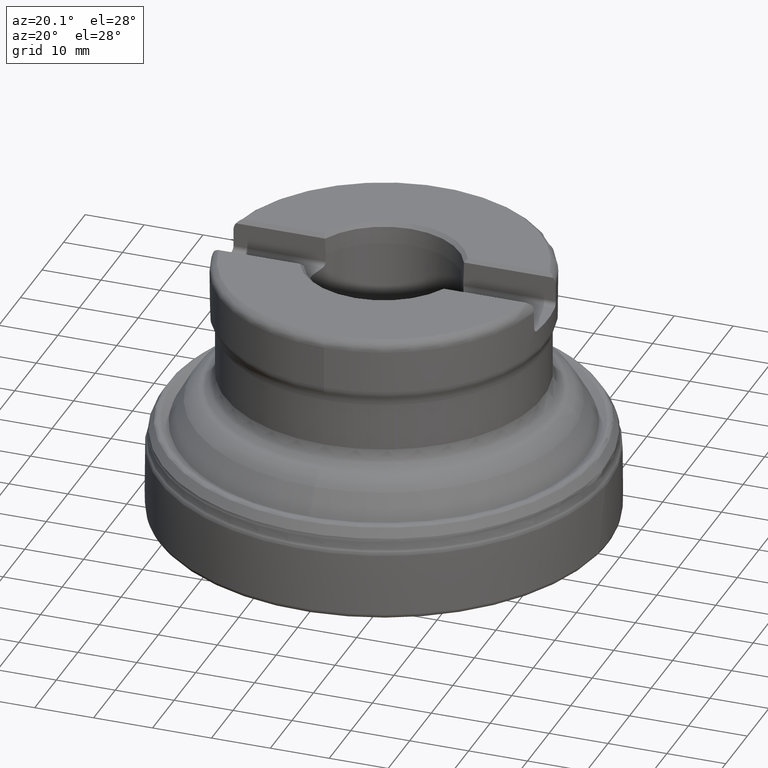
[diagram: clean part render]
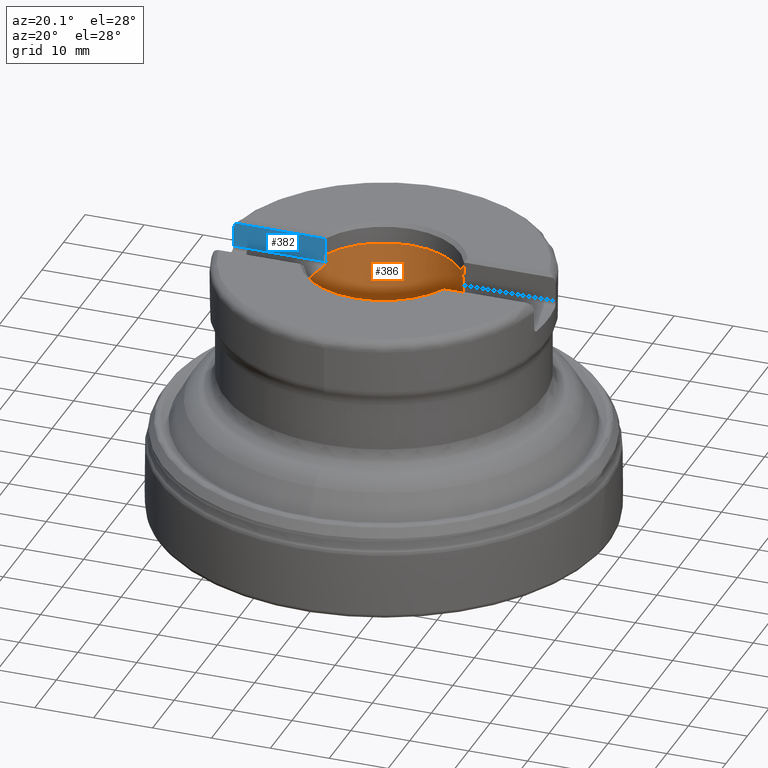
[diagram: same view with the hole feature highlighted: cylindrical wall and planar end face, labeled with their STEP entity ids]
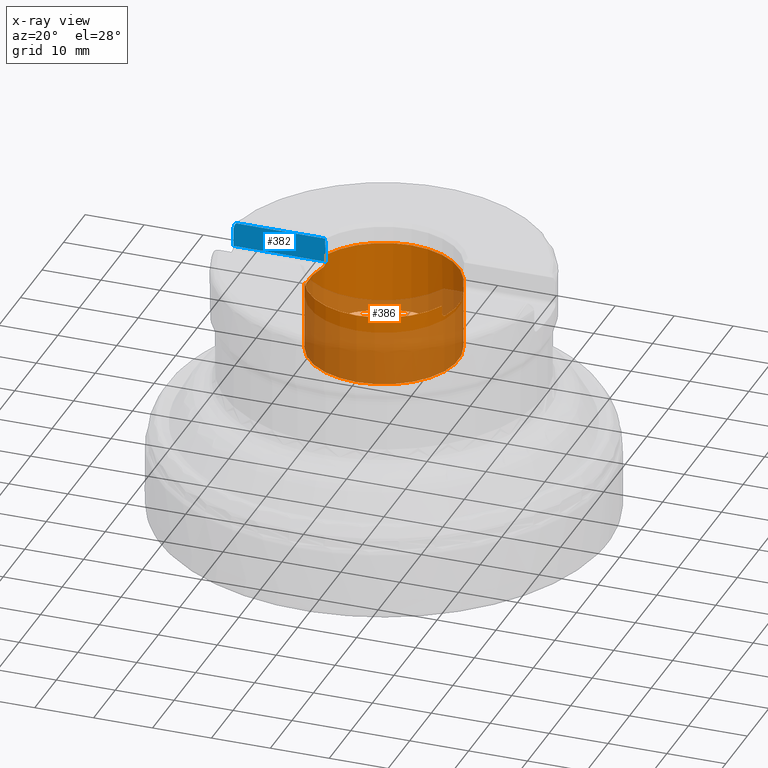
[diagram: x-ray of the same camera — body ghosted, the hole faces saturated]
A machine part, auxiliary view. The highlighted faces form one hole feature of diameter 25.4 mm: the cylindrical wall (entity #386, orange) and its adjacent planar end face (entity #382, blue) — they share a circular edge in the B-rep.
The next image is the same camera in x-ray (body ghosted, the hole faces saturated) — the bore reads through the body.
Wall:
#192=CYLINDRICAL_SURFACE('',#1260,12.7);
#212=LINE('',#2213,#239);
#214=LINE('',#2230,#241);
#216=LINE('',#2247,#243);
#218=LINE('',#2264,#245);
#239=VECTOR('',#1448,1.);
#241=VECTOR('',#1452,1.);
#243=VECTOR('',#1456,1.);
#245=VECTOR('',#1460,1.);
#275=FACE_BOUND('',#515,.T.);
#276=FACE_BOUND('',#516,.T.);
#386=ADVANCED_FACE('',(#275,#276),#192,.F.);
#515=EDGE_LOOP('',(#780));
#516=EDGE_LOOP('',(#781,#782,#783,#784,#785,#786,#787,#788,#789,#790,#791,
#792));
#636=CIRCLE('',#1242,12.7);
#637=CIRCLE('',#1248,12.7);
#640=CIRCLE('',#1257,12.7);
#641=CIRCLE('',#1258,12.7);
#642=CIRCLE('',#1259,12.7);
#780=ORIENTED_EDGE('',*,*,#1090,.F.);
#781=ORIENTED_EDGE('',*,*,#1089,.F.);
#782=ORIENTED_EDGE('',*,*,#1091,.F.);
#783=ORIENTED_EDGE('',*,*,#1085,.F.);
#784=ORIENTED_EDGE('',*,*,#1061,.T.);
#785=ORIENTED_EDGE('',*,*,#1059,.F.);
#786=ORIENTED_EDGE('',*,*,#1070,.T.);
#787=ORIENTED_EDGE('',*,*,#1081,.F.);
#788=ORIENTED_EDGE('',*,*,#1092,.F.);
#789=ORIENTED_EDGE('',*,*,#1077,.F.);
#790=ORIENTED_EDGE('',*,*,#1067,.T.);
#791=ORIENTED_EDGE('',*,*,#1071,.F.);
#792=ORIENTED_EDGE('',*,*,#1064,.T.);
#956=VERTEX_POINT('',#2106);
#957=VERTEX_POINT('',#2108);
#958=VERTEX_POINT('',#2127);
#959=VERTEX_POINT('',#2131);
#960=VERTEX_POINT('',#2148);
#961=VERTEX_POINT('',#2152);
#962=VERTEX_POINT('',#2169);
#963=VERTEX_POINT('',#2173);
#966=VERTEX_POINT('',#2205);
#971=VERTEX_POINT('',#2229);
#972=VERTEX_POINT('',#2239);
#977=VERTEX_POINT('',#2263);
#978=VERTEX_POINT('',#2267);
#1059=EDGE_CURVE('',#956,#957,#636,.T.);
#1061=EDGE_CURVE('',#958,#957,#1162,.T.);
#1064=EDGE_CURVE('',#960,#959,#1163,.T.);
#1067=EDGE_CURVE('',#962,#961,#1164,.T.);
#1070=EDGE_CURVE('',#956,#963,#1165,.T.);
#1071=EDGE_CURVE('',#960,#961,#637,.T.);
#1077=EDGE_CURVE('',#962,#966,#212,.T.);
#1081=EDGE_CURVE('',#971,#963,#214,.T.);
#1085=EDGE_CURVE('',#958,#972,#216,.T.);
#1089=EDGE_CURVE('',#977,#959,#218,.T.);
#1090=EDGE_CURVE('',#978,#978,#640,.T.);
#1091=EDGE_CURVE('',#972,#977,#641,.T.);
#1092=EDGE_CURVE('',#966,#971,#642,.T.);
#1162=B_SPLINE_CURVE_WITH_KNOTS('',3,(#2111,#2112,#2113,#2114,#2115,#2116,
#2117,#2118,#2119,#2120,#2121,#2122,#2123,#2124,#2125,#2126),
 .UNSPECIFIED.,.F.,.F.,(4,3,3,3,3,4),(0.,0.0919914640590944,0.30553597161609,
0.53426746635181,0.767237662896965,1.),.UNSPECIFIED.);
#1163=B_SPLINE_CURVE_WITH_KNOTS('',3,(#2132,#2133,#2134,#2135,#2136,#2137,
#2138,#2139,#2140,#2141,#2142,#2143,#2144,#2145,#2146,#2147),
 .UNSPECIFIED.,.F.,.F.,(4,3,3,3,3,4),(0.,0.187949566051452,0.405805927698822,
0.608459015387889,0.803993626920795,1.),.UNSPECIFIED.);
#1164=B_SPLINE_CURVE_WITH_KNOTS('',3,(#2153,#2154,#2155,#2156,#2157,#2158,
#2159,#2160,#2161,#2162,#2163,#2164,#2165,#2166,#2167,#2168),
 .UNSPECIFIED.,.F.,.F.,(4,3,3,3,3,4),(0.,0.118692613079593,0.33453699269261,
0.564581204634546,0.797853549801286,1.),.UNSPECIFIED.);
#1165=B_SPLINE_CURVE_WITH_KNOTS('',3,(#2174,#2175,#2176,#2177,#2178,#2179,
#2180,#2181,#2182,#2183,#2184,#2185,#2186,#2187,#2188,#2189),
 .UNSPECIFIED.,.F.,.F.,(4,3,3,3,3,4),(0.,0.188583691695649,0.406269930528108,
0.608764767553908,0.804146687201781,1.),.UNSPECIFIED.);
#1242=AXIS2_PLACEMENT_3D('',#2107,#1418,#1419);
#1248=AXIS2_PLACEMENT_3D('',#2191,#1437,#1438);
#1257=AXIS2_PLACEMENT_3D('',#2266,#1463,#1464);
#1258=AXIS2_PLACEMENT_3D('',#2268,#1465,#1466);
#1259=AXIS2_PLACEMENT_3D('',#2269,#1467,#1468);
#1260=AXIS2_PLACEMENT_3D('',#2270,#1469,#1470);
#1418=DIRECTION('',(0.,-1.17145536458252E-15,-1.));
#1419=DIRECTION('',(0.,-1.,1.09273919746571E-15));
#1437=DIRECTION('',(0.,-1.17145536458252E-15,-1.));
#1438=DIRECTION('',(0.,-1.,1.09273919746571E-15));
#1448=DIRECTION('',(0.,1.17145536458252E-15,1.));
#1452=DIRECTION('',(0.,-1.17145536458252E-15,-1.));
#1456=DIRECTION('',(0.,1.17145536458252E-15,1.));
#1460=DIRECTION('',(0.,-1.17145536458252E-15,-1.));
#1463=DIRECTION('',(0.,1.17145536458252E-15,1.));
#1464=DIRECTION('',(0.,-1.,1.09273919746571E-15));
#1465=DIRECTION('',(0.,-1.17145536458252E-15,-1.));
#1466=DIRECTION('',(0.,-1.,1.09273919746571E-15));
#1467=DIRECTION('',(0.,-1.17145536458252E-15,-1.));
#1468=DIRECTION('',(0.,-1.,1.09273919746571E-15));
#1469=DIRECTION('',(0.,1.17145536458252E-15,1.));
#1470=DIRECTION('',(0.,-1.,1.09273919746571E-15));
#2106=CARTESIAN_POINT('',(11.9976153880677,4.16500000000004,38.89));
#2107=CARTESIAN_POINT('',(0.,4.55578991286144E-14,38.89));
#2108=CARTESIAN_POINT('',(11.9976153880677,-4.16499999999995,38.89));
#2111=CARTESIAN_POINT('',(11.6892589585482,-4.96499999999995,39.69));
#2112=CARTESIAN_POINT('',(11.6892589585482,-4.96499999999995,39.6498060238737));
#2113=CARTESIAN_POINT('',(11.6905568194861,-4.96194760993451,39.6094795672361));
#2114=CARTESIAN_POINT('',(11.6931107662262,-4.95592177185671,39.5698220036655));
#2115=CARTESIAN_POINT('',(11.698958464125,-4.9421245848943,39.4790192286835));
#2116=CARTESIAN_POINT('',(11.711724380251,-4.91199201726467,39.3897399894335));
#2117=CARTESIAN_POINT('',(11.729516346995,-4.86913198276407,39.3102656838674));
#2118=CARTESIAN_POINT('',(11.7485630195713,-4.82324941927429,39.2251867772956));
#2119=CARTESIAN_POINT('',(11.773916121918,-4.76138290617577,39.1484896030576));
#2120=CARTESIAN_POINT('',(11.8022061367056,-4.69019512458788,39.0865349379549));
#2121=CARTESIAN_POINT('',(11.8310456314685,-4.61762465512358,39.0233769207823));
#2122=CARTESIAN_POINT('',(11.8637793603147,-4.53318108009497,38.9734606160419));
#2123=CARTESIAN_POINT('',(11.8969626110095,-4.44435379242484,38.9403591135365));
#2124=CARTESIAN_POINT('',(11.9301315013193,-4.35556494565559,38.9072719360387));
#2125=CARTESIAN_POINT('',(11.9646918126675,-4.25983899036061,38.89));
#2126=CARTESIAN_POINT('',(11.9976153880677,-4.16499999999995,38.89));
#2127=CARTESIAN_POINT('',(11.6892589585482,-4.96499999999995,39.69));
#2131=CARTESIAN_POINT('',(-11.6892589585482,-4.96499999999995,39.69));
#2132=CARTESIAN_POINT('',(-11.9976153880677,-4.16499999999995,38.89));
#2133=CARTESIAN_POINT('',(-11.9709296500294,-4.24187040127985,38.89));
#2134=CARTESIAN_POINT('',(-11.9432374526267,-4.31916929808128,38.9012554639037));
#2135=CARTESIAN_POINT('',(-11.9161252503018,-4.39271658761626,38.923093776447));
#2136=CARTESIAN_POINT('',(-11.8848042548693,-4.47768107305346,38.9483221839082));
#2137=CARTESIAN_POINT('',(-11.8535280004186,-4.55960218043711,38.988348905998));
#2138=CARTESIAN_POINT('',(-11.8250446269604,-4.63231255102615,39.0406780616263));
#2139=CARTESIAN_POINT('',(-11.7985253217435,-4.70000918509653,39.0893988654275));
#2140=CARTESIAN_POINT('',(-11.7738131527377,-4.76132932683089,39.1499720685128));
#2141=CARTESIAN_POINT('',(-11.7532950701827,-4.81145040431872,39.2187231442601));
#2142=CARTESIAN_POINT('',(-11.7335040571655,-4.85979541386512,39.2850379878333));
#2143=CARTESIAN_POINT('',(-11.7171731226468,-4.898842546446,39.360635842045));
#2144=CARTESIAN_POINT('',(-11.7061753454793,-4.92498312493471,39.4401487446211));
#2145=CARTESIAN_POINT('',(-11.695162667562,-4.95115912096419,39.5197693782281));
#2146=CARTESIAN_POINT('',(-11.6892589585482,-4.96499999999995,39.6054665324323));
#2147=CARTESIAN_POINT('',(-11.6892589585482,-4.96499999999995,39.69));
#2148=CARTESIAN_POINT('',(-11.9976153880677,-4.16499999999995,38.89));
#2152=CARTESIAN_POINT('',(-11.9976153880677,4.16500000000004,38.89));
#2153=CARTESIAN_POINT('',(-11.6892589585482,4.96500000000004,39.69));
#2154=CARTESIAN_POINT('',(-11.6892589585482,4.96500000000004,39.6382539759116));
#2155=CARTESIAN_POINT('',(-11.6914220951532,4.95991594525217,39.5862283812656));
#2156=CARTESIAN_POINT('',(-11.6956342369027,4.94996361568347,39.5356234407262));
#2157=CARTESIAN_POINT('',(-11.7032051314672,4.93207531981962,39.4446662289205));
#2158=CARTESIAN_POINT('',(-11.7177419428267,4.89766190278369,39.3561102507696));
#2159=CARTESIAN_POINT('',(-11.7370989963523,4.85082540912645,39.2781219741275));
#2160=CARTESIAN_POINT('',(-11.7577225111587,4.80092457483116,39.1950312095163));
#2161=CARTESIAN_POINT('',(-11.7844129191554,4.73539703899577,39.1211342338802));
#2162=CARTESIAN_POINT('',(-11.8137123360767,4.66113729045066,39.0624270647771));
#2163=CARTESIAN_POINT('',(-11.8434497755986,4.58576736799775,39.0028422308741));
#2164=CARTESIAN_POINT('',(-11.876742969613,4.49913949129188,38.9569599142552));
#2165=CARTESIAN_POINT('',(-11.910184351188,4.40879901114995,38.9280537800065));
#2166=CARTESIAN_POINT('',(-11.9391988339032,4.33041761133607,38.9029741782371));
#2167=CARTESIAN_POINT('',(-11.9689979245307,4.24743489097243,38.89));
#2168=CARTESIAN_POINT('',(-11.9976153880677,4.16500000000004,38.89));
#2169=CARTESIAN_POINT('',(-11.6892589585482,4.96500000000004,39.69));
#2173=CARTESIAN_POINT('',(11.6892589585482,4.96500000000004,39.69));
#2174=CARTESIAN_POINT('',(11.9976153880677,4.16500000000004,38.89));
#2175=CARTESIAN_POINT('',(11.9709296500294,4.24187040127994,38.89));
#2176=CARTESIAN_POINT('',(11.9432374526267,4.31916929808137,38.9012554639037));
#2177=CARTESIAN_POINT('',(11.9161252503018,4.39271658761635,38.9230937764469));
#2178=CARTESIAN_POINT('',(11.8848042548693,4.47768107305355,38.9483221839082));
#2179=CARTESIAN_POINT('',(11.8535280004186,4.5596021804372,38.988348905998));
#2180=CARTESIAN_POINT('',(11.8250446269604,4.63231255102624,39.0406780616263));
#2181=CARTESIAN_POINT('',(11.7985253217435,4.70000918509662,39.0893988654275));
#2182=CARTESIAN_POINT('',(11.7738131527377,4.76132932683098,39.1499720685128));
#2183=CARTESIAN_POINT('',(11.7532950701827,4.81145040431881,39.2187231442601));
#2184=CARTESIAN_POINT('',(11.7335040571655,4.85979541386521,39.2850379878333));
#2185=CARTESIAN_POINT('',(11.7171731226468,4.89884254644609,39.360635842045));
#2186=CARTESIAN_POINT('',(11.7061753454793,4.9249831249348,39.4401487446211));
#2187=CARTESIAN_POINT('',(11.695162667562,4.95115912096428,39.5197693782281));
#2188=CARTESIAN_POINT('',(11.6892589585482,4.96500000000004,39.6054665324323));
#2189=CARTESIAN_POINT('',(11.6892589585482,4.96500000000004,39.69));
#2191=CARTESIAN_POINT('',(0.,4.55578991286144E-14,38.89));
#2205=CARTESIAN_POINT('',(-11.6892589585482,4.96500000000005,40.95));
#2213=CARTESIAN_POINT('',(-11.6892589585482,4.96500000000005,44.65));
#2229=CARTESIAN_POINT('',(11.6892589585482,4.96500000000005,40.95));
#2230=CARTESIAN_POINT('',(11.6892589585482,4.96500000000005,44.65));
#2239=CARTESIAN_POINT('',(11.6892589585482,-4.96499999999995,40.95));
#2247=CARTESIAN_POINT('',(11.6892589585482,-4.96499999999995,44.65));
#2263=CARTESIAN_POINT('',(-11.6892589585482,-4.96499999999995,40.95));
#2264=CARTESIAN_POINT('',(-11.6892589585482,-4.96499999999995,44.65));
#2266=CARTESIAN_POINT('',(0.,3.38550600364349E-14,28.9));
#2267=CARTESIAN_POINT('',(0.,-12.7,28.9));
#2268=CARTESIAN_POINT('',(0.,4.79710971796544E-14,40.95));
#2269=CARTESIAN_POINT('',(0.,4.79710971796544E-14,40.95));
#2270=CARTESIAN_POINT('',(0.,5.23054820286097E-14,44.65));
End face:
#174=PLANE('',#1253);
#198=LINE('',#2040,#225);
#209=LINE('',#2170,#236);
#211=LINE('',#2212,#238);
#212=LINE('',#2213,#239);
#225=VECTOR('',#1340,1.);
#236=VECTOR('',#1431,1.);
#238=VECTOR('',#1447,1.);
#239=VECTOR('',#1448,1.);
#382=ADVANCED_FACE('',(#463),#174,.T.);
#463=FACE_OUTER_BOUND('',#511,.T.);
#511=EDGE_LOOP('',(#752,#753,#754,#755,#756,#757,#758));
#752=ORIENTED_EDGE('',*,*,#1074,.T.);
#753=ORIENTED_EDGE('',*,*,#1075,.T.);
#754=ORIENTED_EDGE('',*,*,#1076,.T.);
#755=ORIENTED_EDGE('',*,*,#1009,.F.);
#756=ORIENTED_EDGE('',*,*,#1031,.F.);
#757=ORIENTED_EDGE('',*,*,#1068,.T.);
#758=ORIENTED_EDGE('',*,*,#1077,.T.);
#911=VERTEX_POINT('',#1885);
#912=VERTEX_POINT('',#1886);
#931=VERTEX_POINT('',#2039);
#962=VERTEX_POINT('',#2169);
#966=VERTEX_POINT('',#2205);
#967=VERTEX_POINT('',#2206);
#968=VERTEX_POINT('',#2211);
#1009=EDGE_CURVE('',#911,#912,#1150,.T.);
#1031=EDGE_CURVE('',#931,#911,#198,.T.);
#1068=EDGE_CURVE('',#931,#962,#209,.T.);
#1074=EDGE_CURVE('',#966,#967,#1166,.T.);
#1075=EDGE_CURVE('',#967,#968,#1167,.T.);
#1076=EDGE_CURVE('',#968,#912,#211,.T.);
#1077=EDGE_CURVE('',#962,#966,#212,.T.);
#1150=B_SPLINE_CURVE_WITH_KNOTS('',3,(#1875,#1876,#1877,#1878,#1879,#1880,
#1881,#1882,#1883,#1884),.UNSPECIFIED.,.F.,.F.,(4,3,3,4),(0.,0.496366391203034,
0.803748092382904,1.),.UNSPECIFIED.);
#1166=B_SPLINE_CURVE_WITH_KNOTS('',3,(#2198,#2199,#2200,#2201,#2202,#2203,
#2204),.UNSPECIFIED.,.F.,.F.,(4,3,4),(0.,0.613639292103291,1.),
 .UNSPECIFIED.);
#1167=B_SPLINE_CURVE_WITH_KNOTS('',3,(#2207,#2208,#2209,#2210),
 .UNSPECIFIED.,.F.,.F.,(4,4),(0.,1.),.UNSPECIFIED.);
#1253=AXIS2_PLACEMENT_3D('',#2214,#1449,#1450);
#1340=DIRECTION('',(0.,1.17145536458252E-15,1.));
#1431=DIRECTION('',(1.,0.,0.));
#1447=DIRECTION('',(-1.,0.,0.));
#1448=DIRECTION('',(0.,1.17145536458252E-15,1.));
#1449=DIRECTION('',(0.,-1.,9.78708311696212E-16));
#1450=DIRECTION('',(0.,-9.78384040450919E-16,-1.));
#1875=CARTESIAN_POINT('',(-27.3530395934346,4.96500000000005,42.65));
#1876=CARTESIAN_POINT('',(-27.3530395934346,4.96500000000005,42.8619693257852));
#1877=CARTESIAN_POINT('',(-27.3178695678813,4.96500000000005,43.0766298112396));
#1878=CARTESIAN_POINT('',(-27.2503724925809,4.96500000000005,43.2775654723347));
#1879=CARTESIAN_POINT('',(-27.2081873522731,4.96500000000005,43.4031486775094));
#1880=CARTESIAN_POINT('',(-27.1530399679243,4.96500000000005,43.5250690750317));
#1881=CARTESIAN_POINT('',(-27.0866616495757,4.96500000000005,43.6397191789913));
#1882=CARTESIAN_POINT('',(-27.0444460334364,4.96500000000005,43.7126349276802));
#1883=CARTESIAN_POINT('',(-26.9974981511336,4.96500000000005,43.7830043559091));
#1884=CARTESIAN_POINT('',(-26.9464056044586,4.96500000000005,43.85));
#1885=CARTESIAN_POINT('',(-27.3530395934346,4.96500000000005,42.65));
#1886=CARTESIAN_POINT('',(-26.9464056044586,4.96500000000005,43.85));
#2039=CARTESIAN_POINT('',(-27.3530395934346,4.96500000000004,39.69));
#2040=CARTESIAN_POINT('',(-27.3530395934346,4.96500000000001,-4.8592867675717E-15));
#2169=CARTESIAN_POINT('',(-11.6892589585482,4.96500000000004,39.69));
#2170=CARTESIAN_POINT('',(-39.,4.96500000000004,39.69));
#2198=CARTESIAN_POINT('',(-11.6892589585482,4.96500000000005,40.95));
#2199=CARTESIAN_POINT('',(-11.7115960419743,4.96500000000005,41.5387432219118));
#2200=CARTESIAN_POINT('',(-11.7339233541799,4.96500000000005,42.1274868146249));
#2201=CARTESIAN_POINT('',(-11.7562410611818,4.96500000000005,42.7162307713644));
#2202=CARTESIAN_POINT('',(-11.7702927772348,4.96500000000005,43.086916832763));
#2203=CARTESIAN_POINT('',(-11.7843406854802,4.96500000000005,43.4576030385246));
#2204=CARTESIAN_POINT('',(-11.7983848265641,4.96500000000005,43.8282893869926));
#2205=CARTESIAN_POINT('',(-11.6892589585482,4.96500000000005,40.95));
#2206=CARTESIAN_POINT('',(-11.7983848265641,4.96500000000005,43.8282893869926));
#2207=CARTESIAN_POINT('',(-11.7983848265641,4.96500000000005,43.8282893869926));
#2208=CARTESIAN_POINT('',(-11.8062357442561,4.96500000000005,43.8355256715719));
#2209=CARTESIAN_POINT('',(-11.8140861204486,4.96500000000005,43.842762543688));
#2210=CARTESIAN_POINT('',(-11.821935957979,4.96500000000005,43.85));
#2211=CARTESIAN_POINT('',(-11.821935957979,4.96500000000005,43.85));
#2212=CARTESIAN_POINT('',(-39.,4.96500000000005,43.85));
#2213=CARTESIAN_POINT('',(-11.6892589585482,4.96500000000005,44.65));
#2214=CARTESIAN_POINT('',(-39.,4.96500000000005,47.89));